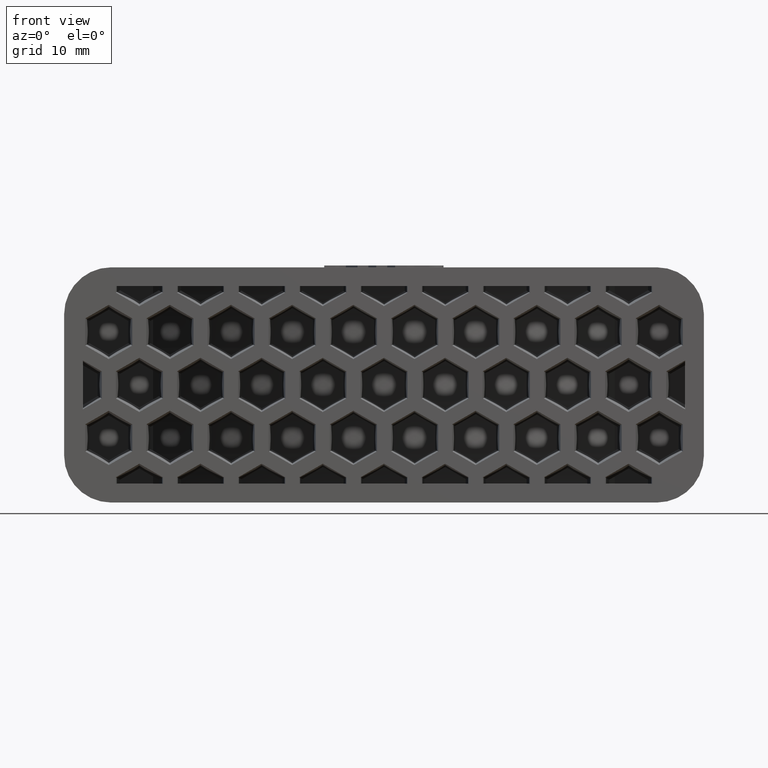
[diagram: clean part render]
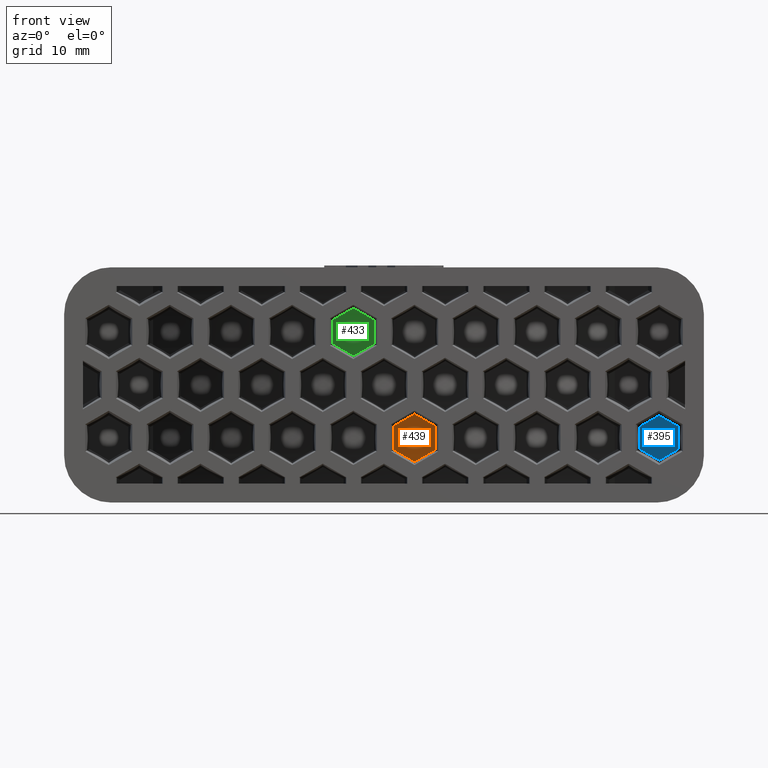
[diagram: same view with three faces highlighted in distinct colors, each labeled with its STEP entity id]
A machine part, front view with three faces highlighted in distinct colors.
Their STEP definitions:

[orange] entity #439 — the highlighted cylindrical surface (partial cylindrical patch) has radius 41.65 mm, axis along (0, 0, -1).
#439 = ADVANCED_FACE( '', ( #1252 ), #1253, .T. );
#1252 = FACE_OUTER_BOUND( '', #2094, .T. );
#1253 = CYLINDRICAL_SURFACE( '', #2095, 41.6500000000000 );
#2094 = EDGE_LOOP( '', ( #5096, #5097, #5098, #5099, #5100, #5101 ) );
#2095 = AXIS2_PLACEMENT_3D( '', #5102, #5103, #5104 );
#5096 = ORIENTED_EDGE( '', *, *, #5898, .T. );
#5097 = ORIENTED_EDGE( '', *, *, #5904, .T. );
#5098 = ORIENTED_EDGE( '', *, *, #5901, .T. );
#5099 = ORIENTED_EDGE( '', *, *, #5903, .T. );
#5100 = ORIENTED_EDGE( '', *, *, #5906, .T. );
#5101 = ORIENTED_EDGE( '', *, *, #5907, .T. );
#5102 = CARTESIAN_POINT( '', ( 0.000000000000000, 58.6500000000000, -10.5000000000000 ) );
#5103 = DIRECTION( '', ( 0.000000000000000, 0.000000000000000, -1.00000000000000 ) );
#5104 = DIRECTION( '', ( -1.00000000000000, 6.93889390390723E-017, 0.000000000000000 ) );
#5898 = EDGE_CURVE( '', #7347, #7349, #7351, .F. );
#5901 = EDGE_CURVE( '', #7352, #7354, #7356, .F. );
#5903 = EDGE_CURVE( '', #7354, #7357, #7359, .F. );
#5904 = EDGE_CURVE( '', #7349, #7352, #7360, .T. );
#5906 = EDGE_CURVE( '', #7357, #7361, #7363, .F. );
#5907 = EDGE_CURVE( '', #7361, #7347, #7364, .F. );
#7347 = VERTEX_POINT( '', #9494 );
#7349 = VERTEX_POINT( '', #9497 );
#7351 = ELLIPSE( '', #9500, 48.1006033783709, 41.6500000000000 );
#7352 = VERTEX_POINT( '', #9501 );
#7354 = VERTEX_POINT( '', #9504 );
#7356 = ELLIPSE( '', #9507, 48.1006033783709, 41.6500000000000 );
#7357 = VERTEX_POINT( '', #9508 );
#7359 = ELLIPSE( '', #9511, 48.1006033783708, 41.6500000000000 );
#7360 = LINE( '', #9512, #9513 );
#7361 = VERTEX_POINT( '', #9514 );
#7363 = LINE( '', #9517, #9518 );
#7364 = ELLIPSE( '', #9519, 48.1006033783709, 41.6500000000000 );
#9494 = CARTESIAN_POINT( '', ( 3.25000000000001, 17.1269943284448, -8.17071551371381 ) );
#9497 = CARTESIAN_POINT( '', ( 5.44701988872615, 17.3577189497623, -6.89761514876985 ) );
#9500 = AXIS2_PLACEMENT_3D( '', #11150, #11151, #11152 );
#9501 = CARTESIAN_POINT( '', ( 5.44701988872615, 17.3577189497623, -4.36071510042785 ) );
#9504 = CARTESIAN_POINT( '', ( 3.25000000000001, 17.1269943284449, -3.08761473548389 ) );
#9507 = AXIS2_PLACEMENT_3D( '', #11155, #11156, #11157 );
#9508 = CARTESIAN_POINT( '', ( 1.04696582975520, 17.0131609923217, -4.35724275337407 ) );
#9511 = AXIS2_PLACEMENT_3D( '', #11159, #11160, #11161 );
#9512 = CARTESIAN_POINT( '', ( 5.44701988872615, 17.3577189497623, -10.5000000000000 ) );
#9513 = VECTOR( '', #11162, 1000.00000000000 );
#9514 = CARTESIAN_POINT( '', ( 1.04696582975520, 17.0131609923216, -6.90108749582363 ) );
#9517 = CARTESIAN_POINT( '', ( 1.04696582975520, 17.0131609923217, -10.5000000000000 ) );
#9518 = VECTOR( '', #11164, 1000.00000000000 );
#9519 = AXIS2_PLACEMENT_3D( '', #11165, #11166, #11167 );
#11150 = CARTESIAN_POINT( '', ( 0.000000000000000, 58.6500000000000, -9.21019222658439 ) );
#11151 = DIRECTION( '', ( 0.499923847578196, 0.0174524064372835, -0.865893503920754 ) );
#11152 = DIRECTION( '', ( 0.865366346075250, 0.0302100515148758, 0.500228387706894 ) );
#11155 = CARTESIAN_POINT( '', ( 0.000000000000000, 58.6500000000000, -2.04813802261332 ) );
#11156 = DIRECTION( '', ( 0.499923847578195, 0.0174524064372835, 0.865893503920754 ) );
#11157 = DIRECTION( '', ( -0.865366346075250, -0.0302100515148758, 0.500228387706894 ) );
#11159 = CARTESIAN_POINT( '', ( 0.000000000000000, 58.6500000000000, -5.80091477234589 ) );
#11160 = DIRECTION( '', ( -0.499923847578195, 0.0174524064372835, 0.865893503920754 ) );
#11161 = DIRECTION( '', ( 0.865366346075250, -0.0302100515148758, 0.500228387706894 ) );
#11162 = DIRECTION( '', ( 0.000000000000000, 0.000000000000000, 1.00000000000000 ) );
#11164 = DIRECTION( '', ( 0.000000000000000, 0.000000000000000, 1.00000000000000 ) );
#11165 = CARTESIAN_POINT( '', ( 0.000000000000000, 58.6500000000000, -5.45741547685181 ) );
#11166 = DIRECTION( '', ( -0.499923847578196, 0.0174524064372835, -0.865893503920754 ) );
#11167 = DIRECTION( '', ( -0.865366346075250, 0.0302100515148758, 0.500228387706895 ) );

[blue] entity #395 — the highlighted planar face has unit normal (-0, 1, 0).
#395 = ADVANCED_FACE( '', ( #1164 ), #1165, .F. );
#1164 = FACE_OUTER_BOUND( '', #2006, .T. );
#1165 = PLANE( '', #2007 );
#2006 = EDGE_LOOP( '', ( #4751, #4752, #4753, #4754, #4755, #4756 ) );
#2007 = AXIS2_PLACEMENT_3D( '', #4757, #4758, #4759 );
#4751 = ORIENTED_EDGE( '', *, *, #6269, .T. );
#4752 = ORIENTED_EDGE( '', *, *, #6270, .T. );
#4753 = ORIENTED_EDGE( '', *, *, #6271, .T. );
#4754 = ORIENTED_EDGE( '', *, *, #6272, .T. );
#4755 = ORIENTED_EDGE( '', *, *, #6273, .T. );
#4756 = ORIENTED_EDGE( '', *, *, #6274, .T. );
#4757 = CARTESIAN_POINT( '', ( 32.0000000000000, 25.0000000000000, -98.5560245579255 ) );
#4758 = DIRECTION( '', ( -1.23259516440783E-032, 1.00000000000000, 0.000000000000000 ) );
#4759 = DIRECTION( '', ( -1.00000000000000, -1.23259516440783E-032, 0.000000000000000 ) );
#6269 = EDGE_CURVE( '', #7901, #7902, #7903, .T. );
#6270 = EDGE_CURVE( '', #7902, #7904, #7905, .T. );
#6271 = EDGE_CURVE( '', #7904, #7906, #7907, .T. );
#6272 = EDGE_CURVE( '', #7906, #7908, #7909, .T. );
#6273 = EDGE_CURVE( '', #7908, #7910, #7911, .T. );
#6274 = EDGE_CURVE( '', #7910, #7901, #7912, .T. );
#7901 = VERTEX_POINT( '', #10321 );
#7902 = VERTEX_POINT( '', #10322 );
#7903 = LINE( '', #10323, #10324 );
#7904 = VERTEX_POINT( '', #10325 );
#7905 = LINE( '', #10326, #10327 );
#7906 = VERTEX_POINT( '', #10328 );
#7907 = LINE( '', #10329, #10330 );
#7908 = VERTEX_POINT( '', #10331 );
#7909 = LINE( '', #10332, #10333 );
#7910 = VERTEX_POINT( '', #10334 );
#7911 = LINE( '', #10335, #10336 );
#7912 = LINE( '', #10337, #10338 );
#10321 = CARTESIAN_POINT( '', ( 29.2500000000000, 25.0000000000000, -8.01203214879554 ) );
#10322 = CARTESIAN_POINT( '', ( 31.3136233767946, 25.0000000000000, -6.82059863669719 ) );
#10323 = CARTESIAN_POINT( '', ( -7.46833131370011, 25.0000000000000, -29.2113706169542 ) );
#10324 = VECTOR( '', #11721, 1000.00000000000 );
#10325 = CARTESIAN_POINT( '', ( 31.3136233767946, 25.0000000000000, -4.43773161250051 ) );
#10326 = CARTESIAN_POINT( '', ( 31.3136233767946, 25.0000000000000, 9.81462432702597 ) );
#10327 = VECTOR( '', #11722, 1000.00000000000 );
#10328 = CARTESIAN_POINT( '', ( 29.2500000000000, 25.0000000000000, -3.24629810040216 ) );
#10329 = CARTESIAN_POINT( '', ( -20.8430453095053, 25.0000000000000, 25.6749350935689 ) );
#10330 = VECTOR( '', #11723, 1000.00000000000 );
#10331 = CARTESIAN_POINT( '', ( 27.1863766232055, 25.0000000000000, -4.43773161250049 ) );
#10332 = CARTESIAN_POINT( '', ( -9.53195469049468, 25.0000000000000, -25.6370700806591 ) );
#10333 = VECTOR( '', #11724, 1000.00000000000 );
#10334 = CARTESIAN_POINT( '', ( 27.1863766232055, 25.0000000000000, -6.82059863669719 ) );
#10335 = CARTESIAN_POINT( '', ( 27.1863766232055, 25.0000000000000, 9.81462432702592 ) );
#10336 = VECTOR( '', #11725, 1000.00000000000 );
#10337 = CARTESIAN_POINT( '', ( -22.9066686862999, 25.0000000000000, 22.1006345572738 ) );
#10338 = VECTOR( '', #11726, 1000.00000000000 );
#11721 = DIRECTION( '', ( 0.866025403784439, 1.06745872495904E-032, 0.500000000000000 ) );
#11722 = DIRECTION( '', ( -4.99600361081321E-016, -6.15804989205242E-048, 1.00000000000000 ) );
#11723 = DIRECTION( '', ( -0.866025403784439, -1.06745872495904E-032, 0.500000000000000 ) );
#11724 = DIRECTION( '', ( -0.866025403784439, -1.06745872495904E-032, -0.500000000000000 ) );
#11725 = DIRECTION( '', ( -2.77555756156289E-016, -3.42113882891801E-048, -1.00000000000000 ) );
#11726 = DIRECTION( '', ( 0.866025403784439, 1.06745872495904E-032, -0.500000000000000 ) );

[green] entity #433 — the highlighted cylindrical surface (partial cylindrical patch) has radius 41.65 mm, axis along (0, 0, -1).
#433 = ADVANCED_FACE( '', ( #1240 ), #1241, .T. );
#1240 = FACE_OUTER_BOUND( '', #2082, .T. );
#1241 = CYLINDRICAL_SURFACE( '', #2083, 41.6500000000000 );
#2082 = EDGE_LOOP( '', ( #5042, #5043, #5044, #5045, #5046, #5047 ) );
#2083 = AXIS2_PLACEMENT_3D( '', #5048, #5049, #5050 );
#5042 = ORIENTED_EDGE( '', *, *, #6007, .F. );
#5043 = ORIENTED_EDGE( '', *, *, #6005, .F. );
#5044 = ORIENTED_EDGE( '', *, *, #6003, .F. );
#5045 = ORIENTED_EDGE( '', *, *, #6001, .F. );
#5046 = ORIENTED_EDGE( '', *, *, #5999, .F. );
#5047 = ORIENTED_EDGE( '', *, *, #5996, .F. );
#5048 = CARTESIAN_POINT( '', ( 0.000000000000000, 58.6500000000000, -10.5000000000000 ) );
#5049 = DIRECTION( '', ( 0.000000000000000, 0.000000000000000, -1.00000000000000 ) );
#5050 = DIRECTION( '', ( -1.00000000000000, 6.93889390390723E-017, 0.000000000000000 ) );
#5996 = EDGE_CURVE( '', #7499, #7500, #7501, .T. );
#5999 = EDGE_CURVE( '', #7500, #7504, #7505, .T. );
#6001 = EDGE_CURVE( '', #7504, #7507, #7508, .T. );
#6003 = EDGE_CURVE( '', #7507, #7510, #7511, .T. );
#6005 = EDGE_CURVE( '', #7510, #7513, #7514, .T. );
#6007 = EDGE_CURVE( '', #7513, #7499, #7516, .F. );
#7499 = VERTEX_POINT( '', #9714 );
#7500 = VERTEX_POINT( '', #9715 );
#7501 = ELLIPSE( '', #9716, 48.1006033783708, 41.6500000000000 );
#7504 = VERTEX_POINT( '', #9721 );
#7505 = ELLIPSE( '', #9722, 48.1006033783709, 41.6500000000000 );
#7507 = VERTEX_POINT( '', #9725 );
#7508 = LINE( '', #9726, #9727 );
#7510 = VERTEX_POINT( '', #9730 );
#7511 = ELLIPSE( '', #9731, 48.1006033783709, 41.6500000000000 );
#7513 = VERTEX_POINT( '', #9734 );
#7514 = ELLIPSE( '', #9735, 48.1006033783709, 41.6500000000000 );
#7516 = LINE( '', #9738, #9739 );
#9714 = CARTESIAN_POINT( '', ( -1.04696582975518, 17.0131609923217, 4.35724275337407 ) );
#9715 = CARTESIAN_POINT( '', ( -3.24999999999999, 17.1269943284449, 3.08761473548389 ) );
#9716 = AXIS2_PLACEMENT_3D( '', #11312, #11313, #11314 );
#9721 = CARTESIAN_POINT( '', ( -5.44701988872613, 17.3577189497623, 4.36071510042784 ) );
#9722 = AXIS2_PLACEMENT_3D( '', #11317, #11318, #11319 );
#9725 = CARTESIAN_POINT( '', ( -5.44701988872614, 17.3577189497623, 6.89761514876984 ) );
#9726 = CARTESIAN_POINT( '', ( -5.44701988872614, 17.3577189497623, -10.5000000000000 ) );
#9727 = VECTOR( '', #11321, 1000.00000000000 );
#9730 = CARTESIAN_POINT( '', ( -3.25000000000001, 17.1269943284449, 8.17071551371381 ) );
#9731 = AXIS2_PLACEMENT_3D( '', #11323, #11324, #11325 );
#9734 = CARTESIAN_POINT( '', ( -1.04696582975519, 17.0131609923217, 6.90108749582363 ) );
#9735 = AXIS2_PLACEMENT_3D( '', #11327, #11328, #11329 );
#9738 = CARTESIAN_POINT( '', ( -1.04696582975520, 17.0131609923217, -10.5000000000000 ) );
#9739 = VECTOR( '', #11331, 1000.00000000000 );
#11312 = CARTESIAN_POINT( '', ( 0.000000000000000, 58.6500000000000, 5.80091477234588 ) );
#11313 = DIRECTION( '', ( 0.499923847578195, 0.0174524064372835, -0.865893503920754 ) );
#11314 = DIRECTION( '', ( 0.865366346075250, 0.0302100515148758, 0.500228387706894 ) );
#11317 = CARTESIAN_POINT( '', ( 0.000000000000000, 58.6500000000000, 2.04813802261332 ) );
#11318 = DIRECTION( '', ( -0.499923847578196, 0.0174524064372835, -0.865893503920754 ) );
#11319 = DIRECTION( '', ( -0.865366346075250, 0.0302100515148758, 0.500228387706894 ) );
#11321 = DIRECTION( '', ( 0.000000000000000, 0.000000000000000, 1.00000000000000 ) );
#11323 = CARTESIAN_POINT( '', ( 0.000000000000000, 58.6500000000000, 9.21019222658438 ) );
#11324 = DIRECTION( '', ( -0.499923847578196, 0.0174524064372835, 0.865893503920754 ) );
#11325 = DIRECTION( '', ( 0.865366346075250, -0.0302100515148758, 0.500228387706895 ) );
#11327 = CARTESIAN_POINT( '', ( 0.000000000000000, 58.6500000000000, 5.45741547685182 ) );
#11328 = DIRECTION( '', ( 0.499923847578196, 0.0174524064372835, 0.865893503920754 ) );
#11329 = DIRECTION( '', ( -0.865366346075250, -0.0302100515148758, 0.500228387706895 ) );
#11331 = DIRECTION( '', ( 0.000000000000000, 0.000000000000000, 1.00000000000000 ) );